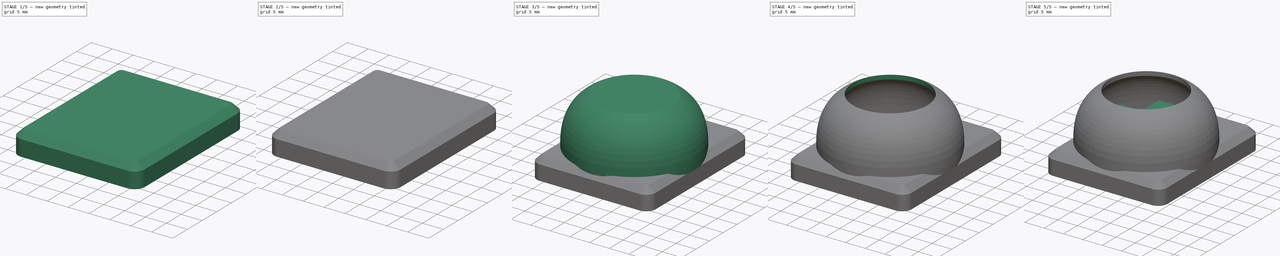
[diagram: build sequence overview — one tinted view per stage of 5, left to right]
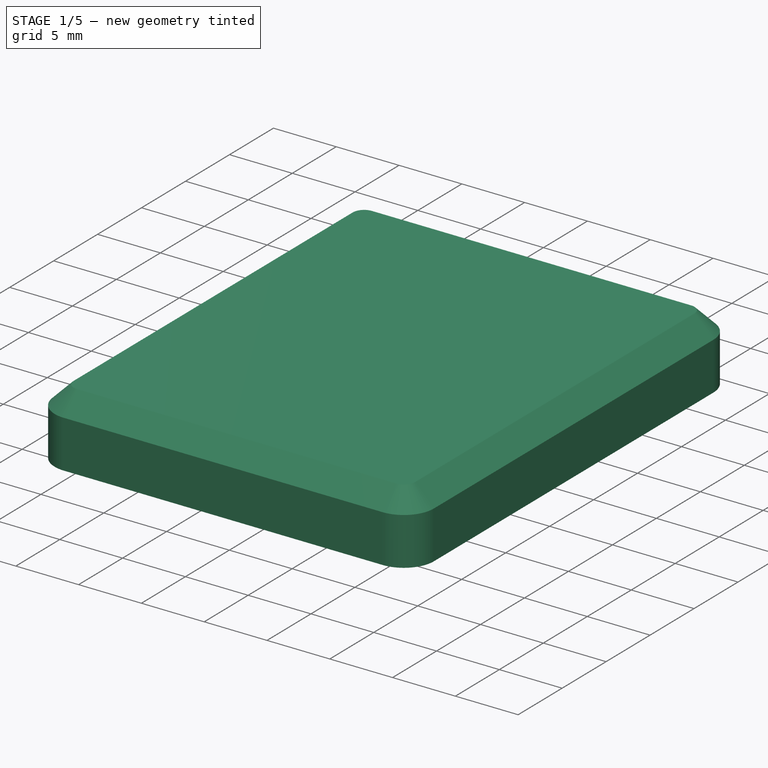
[diagram: stage 1 of 5 — iso view after this stage's code; geometry added in this stage tinted green]
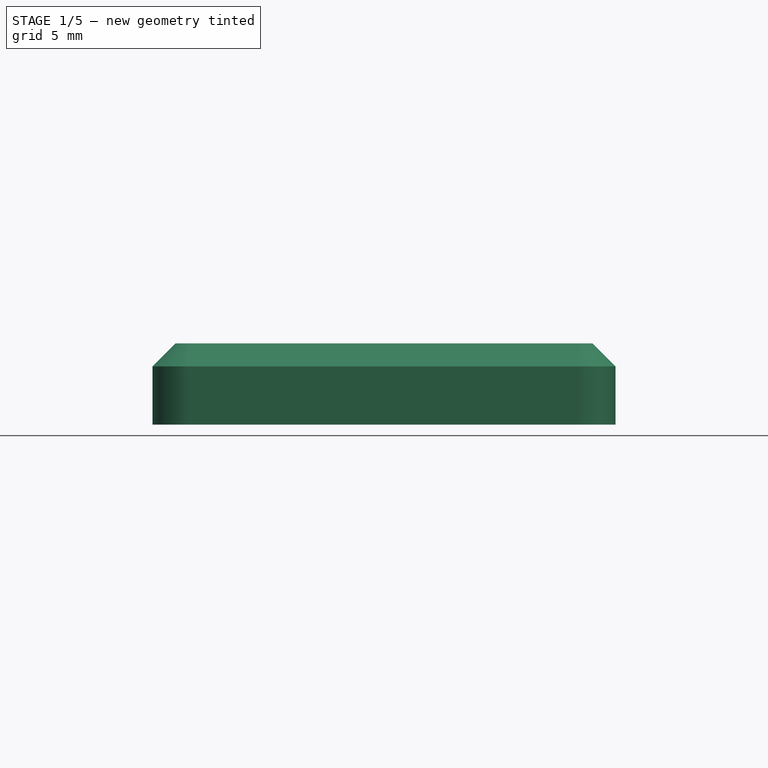
[diagram: stage 1 of 5 — front view after this stage's code; geometry added in this stage tinted green]
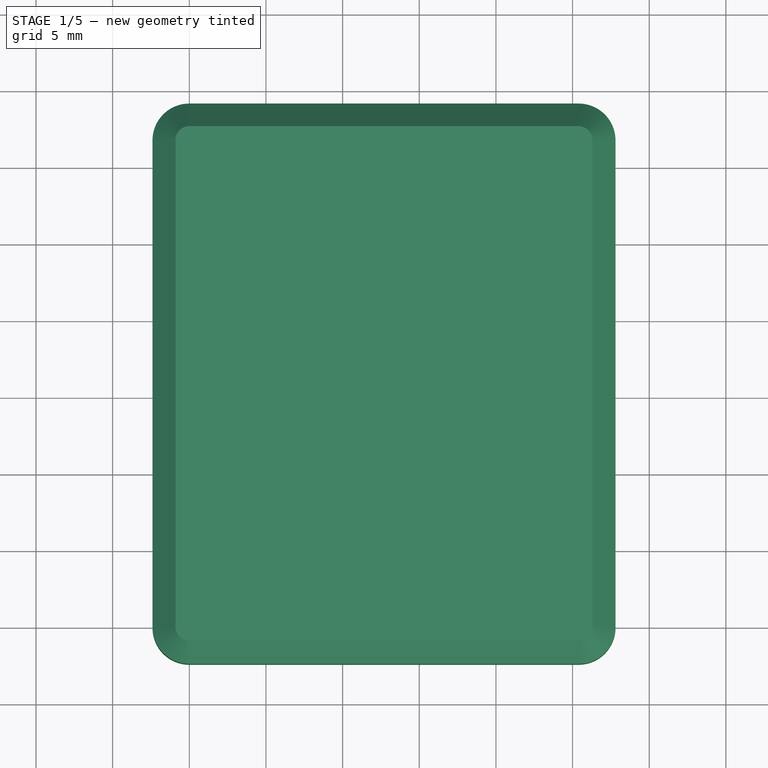
[diagram: stage 1 of 5 — top view after this stage's code; geometry added in this stage tinted green]
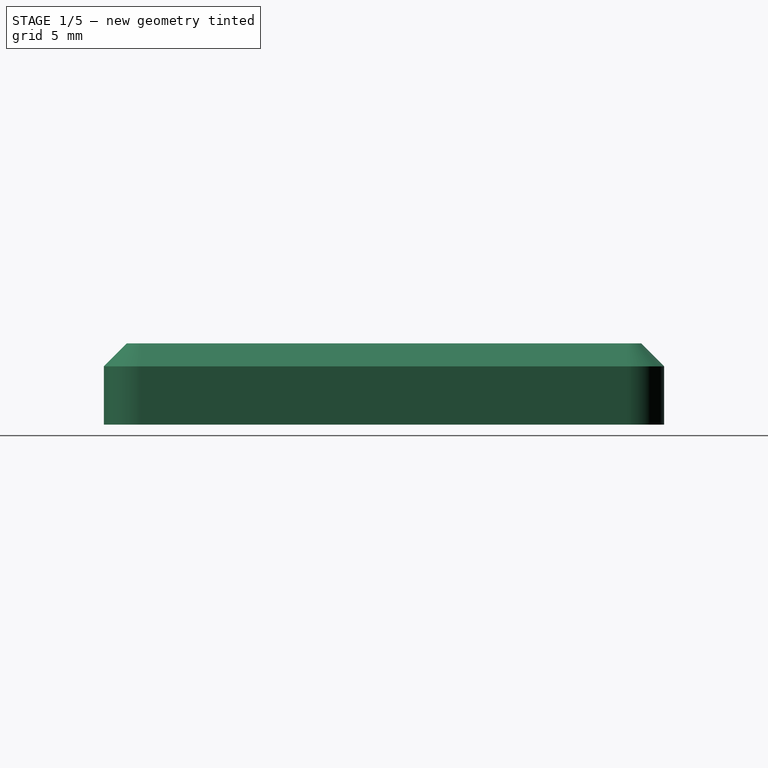
[diagram: stage 1 of 5 — right view after this stage's code; geometry added in this stage tinted green]
FCSTD DOCUMENT  (FreeCAD 1.0RUnknown)
Label: thumbstick-breakout
License: All rights reserved
LicenseURL: https://en.wikipedia.org/wiki/All_rights_reserved
objects: Sketcher::SketchObject×14, App::Part×6, PartDesign::Pad×6, PartDesign::ShapeBinder×5, PartDesign::Pocket×5, PartDesign::Body×4, Part::Feature×3, PartDesign::Thickness×2, PartDesign::CoordinateSystem×1, Part::Ellipsoid×1, PartDesign::Plane×1, PartDesign::Chamfer×1, PartDesign::Revolution×1
note: 88 computed .brp shape members not serialized (recipe doc carries the construction recipe); baked Part::Feature solids carry a one-line shape summary decoded from their .brp

FEATURE [PartDesign::Body] Body002  label="stick"
  AllowCompound = false
  Group = -> [ShapeBinder005,Sketch,Pad003]
  Origin = -> Origin013
  Placement = pos=(0,0,6.5) rot=(0,0,1;0rad)
  Tip = -> Pad003
FEATURE [Part::Feature] Part__Feature001  label="Thumbstick"
  Placement = pos=(12.7,13.8,-2.8) rot=(0,0,1;0rad)
  shape: bbox 24.74 x 24.74 x 17.5 mm, 20 faces (baked)
FEATURE [App::Part] Part  label="thumbstick"
  Group = -> [Body001,Body002,Part__Feature001]
  Origin = -> Origin011
FEATURE [Sketcher::SketchObject] Sketch015  label="2.006"
  ArcFitTolerance = 1e-06
  FullyConstrained = false
  MakeInternals = false
  sketch-geometry (8):
    g0: LineSegment StartX=-2.4 StartY=31.75 StartZ=0 EndX=-2.4 EndY=0 EndZ=0
    g1: ArcOfCircle CenterX=0 CenterY=0 CenterZ=0 NormalX=0 NormalY=0 NormalZ=1 AngleXU=0 Radius=2.4 StartAngle=3.14159 EndAngle=4.71239
    g2: LineSegment StartX=-4e-16 StartY=-2.4 StartZ=0 EndX=25.4 EndY=-2.4 EndZ=0
    g3: ArcOfCircle CenterX=25.4 CenterY=0 CenterZ=0 NormalX=0 NormalY=0 NormalZ=1 AngleXU=1.5708 Radius=2.4 StartAngle=3.14159 EndAngle=4.71239
    g4: LineSegment StartX=27.8 StartY=-7e-16 StartZ=0 EndX=27.8 EndY=31.75 EndZ=0
    g5: ArcOfCircle CenterX=25.4 CenterY=31.75 CenterZ=0 NormalX=0 NormalY=0 NormalZ=1 AngleXU=-3.14159 Radius=2.4 StartAngle=3.14159 EndAngle=4.71239
    g6: LineSegment StartX=25.4 StartY=34.15 StartZ=0 EndX=0 EndY=34.15 EndZ=0
    g7: ArcOfCircle CenterX=0 CenterY=31.75 CenterZ=0 NormalX=0 NormalY=0 NormalZ=1 AngleXU=-1.5708 Radius=2.4 StartAngle=3.14159 EndAngle=4.71239
  constraints (12):
    c: Vertical(g0)
    c: Coincident(g0,g1)
    c: Coincident(g1,g2)
    c: Horizontal(g2)
    c: Coincident(g2,g3)
    c: Coincident(g3,g4)
    c: Vertical(g4)
    c: Coincident(g4,g5)
    c: Coincident(g5,g6)
    c: Horizontal(g6)
    c: Coincident(g6,g7)
    c: Coincident(g7,g0)
FEATURE [PartDesign::Pad] Pad004
  Direction = (0,0,1)
  Length = 5.3
  Length2 = 10
  Profile = -> Sketch015
  ReferenceAxis = -> Sketch015 [N_Axis]
  Refine = true
  Suppressed = false
  Type = 0
FEATURE [PartDesign::Thickness] Thickness
  Base = -> Pad004 [Face9]
  BaseFeature = -> Pad004
  Intersection = false
  Join = 0
  Mode = 0
  Refine = true
  Reversed = true
  SupportTransform = false
  Suppressed = false
  Value = 2
FEATURE [PartDesign::ShapeBinder] ShapeBinder006
  Support = -> [Pocket003]
  TraceSupport = false
FEATURE [Sketcher::SketchObject] Sketch016
  ArcFitTolerance = 1e-06
  AttachmentSupport = -> [Thickness]
  ExternalGeometry = -> [ShapeBinder006]
  FullyConstrained = true
  MakeInternals = false
  MapMode = 5
  Placement = pos=(0,0,0) rot=(1,0,0;3.14159rad)
  sketch-geometry (8):
    g0: Circle CenterX=2.54 CenterY=-2.54 CenterZ=0 NormalX=0 NormalY=0 NormalZ=1 AngleXU=0 Radius=3
    g1: Circle CenterX=22.86 CenterY=-2.54 CenterZ=0 NormalX=0 NormalY=0 NormalZ=1 AngleXU=0 Radius=3
    g2: Circle CenterX=22.86 CenterY=-29.21 CenterZ=0 NormalX=0 NormalY=0 NormalZ=1 AngleXU=0 Radius=3
    g3: Circle CenterX=2.54 CenterY=-29.21 CenterZ=0 NormalX=0 NormalY=0 NormalZ=1 AngleXU=0 Radius=3
    g4: Circle CenterX=2.54 CenterY=-2.54 CenterZ=0 NormalX=0 NormalY=0 NormalZ=1 AngleXU=0 Radius=1.65
    g5: Circle CenterX=22.86 CenterY=-2.54 CenterZ=0 NormalX=0 NormalY=0 NormalZ=1 AngleXU=0 Radius=1.65
    g6: Circle CenterX=22.86 CenterY=-29.21 CenterZ=0 NormalX=0 NormalY=0 NormalZ=1 AngleXU=0 Radius=1.65
    g7: Circle CenterX=2.54 CenterY=-29.21 CenterZ=0 NormalX=0 NormalY=0 NormalZ=1 AngleXU=0 Radius=1.65
  constraints (16):
    c: Diameter(g0) = 6
    c: Coincident(g0,g-3)
    c: Diameter(g1) = 6
    c: Coincident(g1,g-4)
    c: Diameter(g2) = 6
    c: Coincident(g2,g-5)
    c: Diameter(g3) = 6
    c: Coincident(g3,g-6)
    c: Diameter(g4) = 3.3
    c: Coincident(g4,g0)
    c: Diameter(g5) = 3.3
    c: Coincident(g5,g1)
    c: Diameter(g6) = 3.3
    c: Coincident(g6,g2)
    c: Diameter(g7) = 3.3
    c: Coincident(g7,g3)
FEATURE [Part::Ellipsoid] Ellipsoid
  Angle1 = -90
  Angle2 = 90
  Angle3 = 180
  AttacherType = Attacher::AttachEngine3D
  Placement = pos=(12.7,13.8,9.3) rot=(1,0,0;1.5708rad)
  Radius1 = 12.37
  Radius2 = 12.37
  Radius3 = 8
FEATURE [PartDesign::Plane] DatumPlane
  AttachmentOffset = pos=(0,0,12.7) rot=(0,0,1;0rad)
  AttachmentSupport = -> [YZ_Plane014]
  Length = 70.0266
  MapMode = 5
  Placement = pos=(12.7,0,0) rot=(0.57735,0.57735,0.57735;2.0944rad)
  ResizeMode = 0
  Width = 60.8766
FEATURE [Sketcher::SketchObject] Sketch017
  ArcFitTolerance = 1e-06
  AttachmentSupport = -> [DatumPlane]
  FullyConstrained = false
  MakeInternals = false
  MapMode = 5
  Placement = pos=(12.7,0,0) rot=(0.57735,0.57735,0.57735;2.0944rad)
  sketch-geometry (18):
    g0: Circle [constr] CenterX=29.1118 CenterY=3.8 CenterZ=0 NormalX=0 NormalY=0 NormalZ=1 AngleXU=0 Radius=1
    g1: Circle [constr] CenterX=30.0485 CenterY=13.7535 CenterZ=0 NormalX=0 NormalY=0 NormalZ=1 AngleXU=0 Radius=1
    g2: Circle [constr] CenterX=23.3909 CenterY=17.1877 CenterZ=0 NormalX=0 NormalY=0 NormalZ=1 AngleXU=0 Radius=1
    g3: BSplineCurve PolesCount=3 KnotsCount=2 Degree=2 IsPeriodic=0
    g4: GeomPoint [constr] X=29.1118 Y=3.8 Z=0
    g5: GeomPoint [constr] X=23.3909 Y=17.1877 Z=0
    g6: LineSegment StartX=23.3909 StartY=17.1877 StartZ=0 EndX=13.7824 EndY=17.1877 EndZ=0
    g7: Circle [constr] CenterX=28.1118 CenterY=3.8 CenterZ=0 NormalX=0 NormalY=0 NormalZ=1 AngleXU=0 Radius=1
    g8: Circle [constr] CenterX=28.4002 CenterY=12.6207 CenterZ=0 NormalX=0 NormalY=0 NormalZ=1 AngleXU=0 Radius=1
    g9: Circle [constr] CenterX=23.1917 CenterY=16.2077 CenterZ=0 NormalX=0 NormalY=0 NormalZ=1 AngleXU=0 Radius=1
    g10: BSplineCurve PolesCount=3 KnotsCount=2 Degree=2 IsPeriodic=0
    g11: GeomPoint [constr] X=28.1118 Y=3.8 Z=0
    g12: GeomPoint [constr] X=23.1917 Y=16.2077 Z=0
    g13: LineSegment StartX=28.1118 StartY=3.8 StartZ=0 EndX=29.1118 EndY=3.8 EndZ=0
    g14: LineSegment StartX=13.7824 StartY=17.1877 StartZ=0 EndX=13.7824 EndY=16.2077 EndZ=0
    g15: LineSegment StartX=13.7824 StartY=16.2077 StartZ=0 EndX=23.1917 EndY=16.2077 EndZ=0
    g16: LineSegment [constr] StartX=1.40969 StartY=9.23031 StartZ=0 EndX=26.155 EndY=9.23031 EndZ=0
    g17: LineSegment [constr] StartX=13.7824 StartY=9.23031 StartZ=0 EndX=13.7824 EndY=17.9973 EndZ=0
  constraints (33):
    c: Weight(g0) = 1
    c: Equal(g0,g1)
    c: Equal(g0,g2)
    c: InternalAlignment(g0,g3)
    c: InternalAlignment(g1,g3)
    c: InternalAlignment(g2,g3)
    c: InternalAlignment(g4,g3)
    c: InternalAlignment(g5,g3)
    c: Coincident(g6,g3)
    c: Horizontal(g6)
    c: Weight(g7) = 1
    c: Equal(g7,g8)
    c: Equal(g7,g9)
    c: InternalAlignment(g7,g10)
    c: InternalAlignment(g8,g10)
    c: InternalAlignment(g9,g10)
    c: InternalAlignment(g11,g10)
    c: InternalAlignment(g12,g10)
    c: Coincident(g13,g10)
    c: Coincident(g13,g3)
    c: Horizontal(g13)
    c: DistanceX(g13,g13) = 1
    c: Distance(g3,g10) = 1
    c: Distance(g1,g8) = 2
    c: Coincident(g6,g14)
    c: Vertical(g14)
    c: Coincident(g15,g10)
    c: Horizontal(g15)
    c: Horizontal(g16)
    c: Symmetric(g16,g16,g17)
    c: Vertical(g17)
    c: PointOnObject(g6,g17)
    c: Distance(g10,g-3) = 1.5
FEATURE [PartDesign::Chamfer] Chamfer
  Angle = 45
  Base = -> Thickness [Edge4]
  BaseFeature = -> Thickness
  ChamferType = 0
  FlipDirection = false
  Refine = true
  Size = 1.5
  Size2 = 1
  SupportTransform = false
  Suppressed = false
  UseAllEdges = false
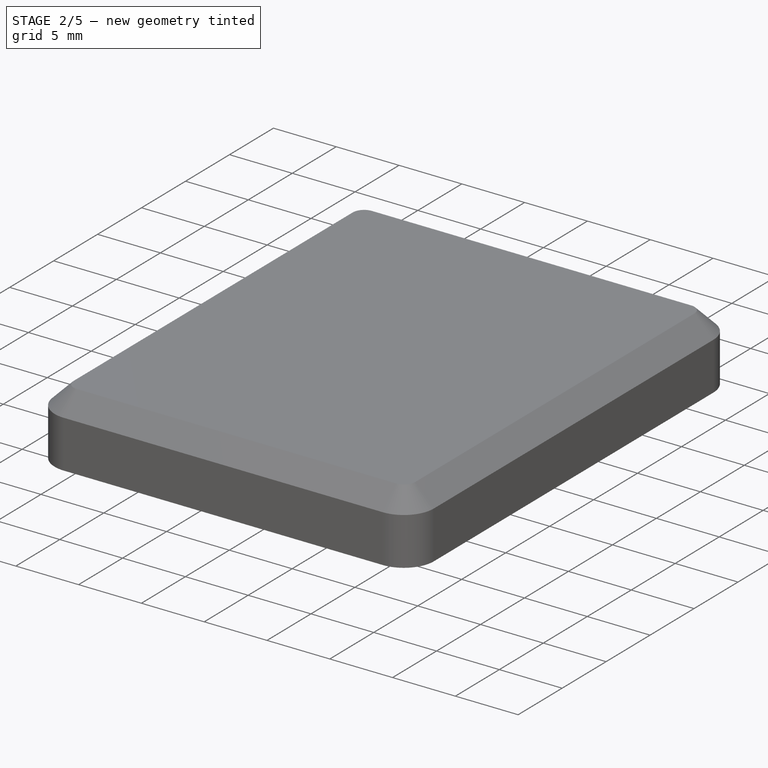
[diagram: stage 2 of 5 — iso view after this stage's code; geometry added in this stage tinted green]
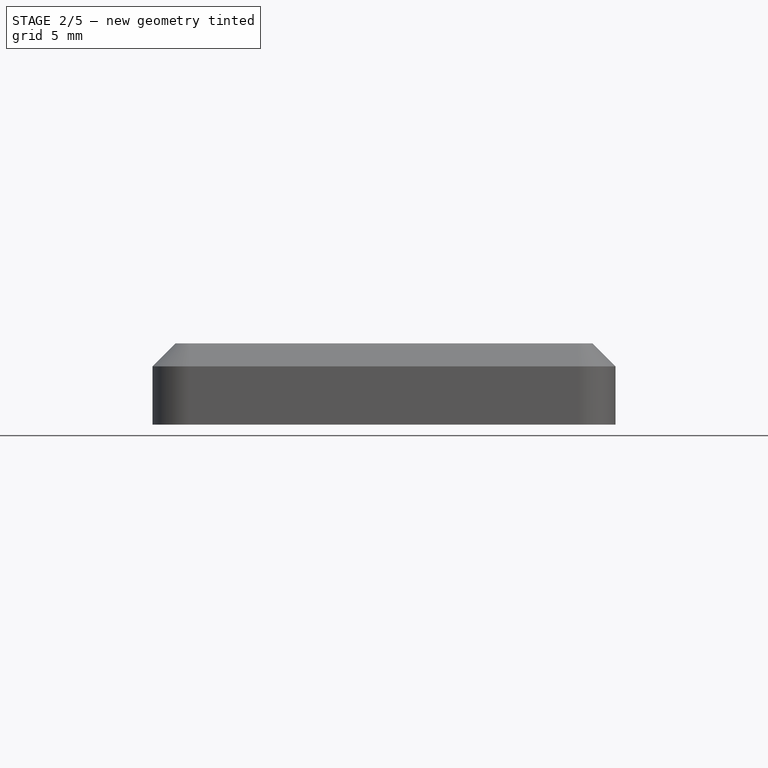
[diagram: stage 2 of 5 — front view after this stage's code; geometry added in this stage tinted green]
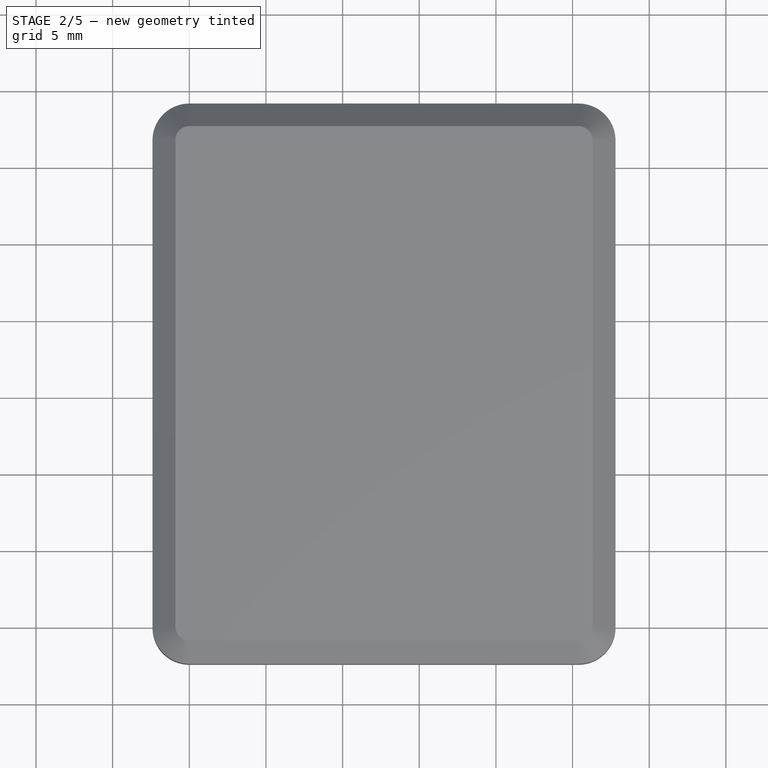
[diagram: stage 2 of 5 — top view after this stage's code; geometry added in this stage tinted green]
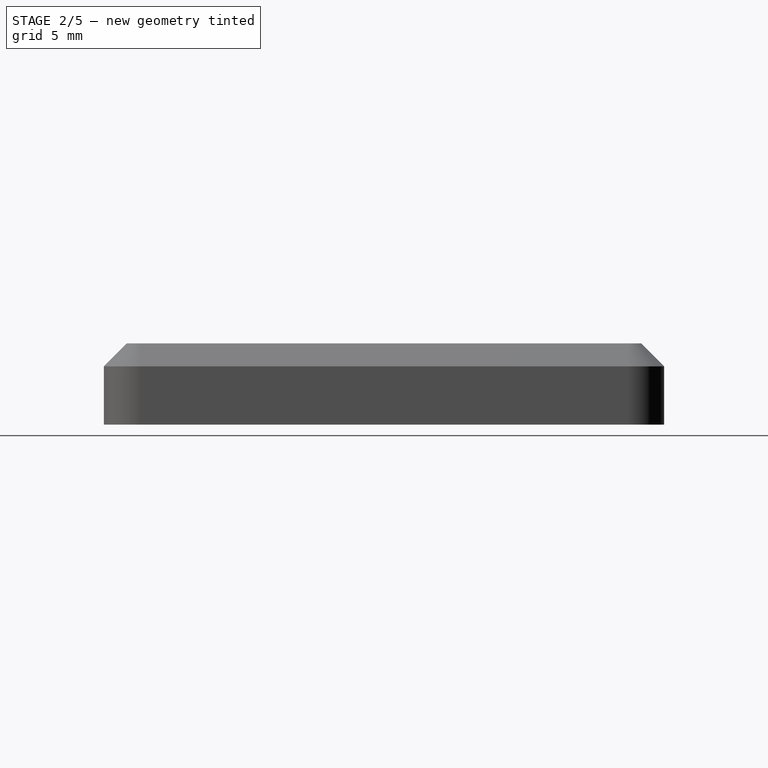
[diagram: stage 2 of 5 — right view after this stage's code; geometry added in this stage tinted green]
FEATURE [PartDesign::CoordinateSystem] Local_CS_bbd4
  AttacherType = Attacher::AttachEngine3D
  MapMode = 2
FEATURE [Part::Feature] Pcb_bbd4
  Placement = pos=(-137.3,117.78,0) rot=(0,0,1;0rad)
  shape: bbox 25.4 x 31.75 x 1.6 mm, 24 faces (baked)
FEATURE [Sketcher::SketchObject] PCB_Sketch_bbd4
  ArcFitTolerance = 1e-06
  FullyConstrained = false
  MakeInternals = false
  sketch-geometry (4):
    g0: LineSegment StartX=0 StartY=31.75 StartZ=0 EndX=0 EndY=0 EndZ=0
    g1: LineSegment StartX=25.4 StartY=31.75 StartZ=0 EndX=0 EndY=31.75 EndZ=0
    g2: LineSegment StartX=0 StartY=0 StartZ=0 EndX=25.4 EndY=0 EndZ=0
    g3: LineSegment StartX=25.4 StartY=0 StartZ=0 EndX=25.4 EndY=31.75 EndZ=0
  constraints (4):
    c: Coincident(g0,g2)
    c: Coincident(g0,g1)
    c: Coincident(g2,g3)
    c: Coincident(g1,g3)
FEATURE [App::Part] Board_Geoms_bbd4
  Group = -> [Pcb_bbd4,PCB_Sketch_bbd4]
  Origin = -> Origin
FEATURE [Part::Feature] Shape  label="J1_SOLID_4955641dfa02"
  Placement = pos=(12.66,29.4,0) rot=(0,0.707107,0.707107;3.14159rad)
  shape: bbox 4.001 x 3.601 x 0.9007 mm, 670 faces (baked)
FEATURE [App::Part] Top_bbd4
  Group = -> [Shape]
  Origin = -> Origin003
FEATURE [App::Part] Step_Models_bbd4
  Group = -> [Top_bbd4]
  Origin = -> Origin002
FEATURE [App::Part] Board_bbd4  label="thumbstick-breakout"
  Group = -> [Local_CS_bbd4,Board_Geoms_bbd4,Step_Models_bbd4]
  Origin = -> Origin001
FEATURE [Sketcher::SketchObject] Sketch009  label="2.005"
  ArcFitTolerance = 1e-06
  FullyConstrained = false
  MakeInternals = false
  sketch-geometry (8):
    g0: LineSegment StartX=-2.4 StartY=31.75 StartZ=0 EndX=-2.4 EndY=0 EndZ=0
    g1: ArcOfCircle CenterX=4.026e-13 CenterY=0 CenterZ=0 NormalX=0 NormalY=0 NormalZ=1 AngleXU=0 Radius=2.4 StartAngle=3.14159 EndAngle=4.71239
    g2: LineSegment StartX=4.70767e-08 StartY=-2.4 StartZ=0 EndX=25.4 EndY=-2.4 EndZ=0
    g3: ArcOfCircle CenterX=25.4 CenterY=0 CenterZ=0 NormalX=0 NormalY=0 NormalZ=1 AngleXU=0 Radius=2.4 StartAngle=4.71239 EndAngle=6.28318
    g4: LineSegment StartX=27.8 StartY=-7.37231e-07 StartZ=0 EndX=27.8 EndY=31.75 EndZ=0
    g5: ArcOfCircle CenterX=25.4 CenterY=31.75 CenterZ=0 NormalX=0 NormalY=0 NormalZ=1 AngleXU=0 Radius=2.4 StartAngle=0 EndAngle=1.5708
    g6: LineSegment StartX=25.4 StartY=34.15 StartZ=0 EndX=7.84308e-07 EndY=34.15 EndZ=0
    g7: ArcOfCircle CenterX=0 CenterY=31.75 CenterZ=0 NormalX=0 NormalY=0 NormalZ=1 AngleXU=0 Radius=2.4 StartAngle=1.5708 EndAngle=3.14159
  constraints (12):
    c: Vertical(g0)
    c: Coincident(g0,g1)
    c: Coincident(g1,g2)
    c: Horizontal(g2)
    c: Coincident(g2,g3)
    c: Coincident(g3,g4)
    c: Vertical(g4)
    c: Coincident(g4,g5)
    c: Coincident(g5,g6)
    c: Horizontal(g6)
    c: Coincident(g6,g7)
    c: Coincident(g7,g0)
FEATURE [PartDesign::Pad] Pad
  Direction = (0,0,1)
  Length = 3.2
  Length2 = 10
  Profile = -> Sketch009
  ReferenceAxis = -> Sketch009 [N_Axis]
  Refine = true
  Suppressed = false
  Type = 0
FEATURE [PartDesign::Thickness] Thickness001
  Base = -> Pad [Face10]
  BaseFeature = -> Pad
  Intersection = false
  Join = 0
  Mode = 0
  Refine = true
  Reversed = true
  SupportTransform = false
  Suppressed = false
  Value = 2
FEATURE [PartDesign::ShapeBinder] ShapeBinder
  Support = -> [Pcb_bbd4]
  TraceSupport = false
FEATURE [Sketcher::SketchObject] Sketch010
  ArcFitTolerance = 1e-06
  AttachmentSupport = -> [Thickness001]
  ExternalGeometry = -> [ShapeBinder]
  FullyConstrained = true
  MakeInternals = false
  MapMode = 5
  Placement = pos=(0,0,2) rot=(0,0,1;0rad)
  sketch-geometry (4):
    g0: Circle CenterX=2.54 CenterY=29.21 CenterZ=0 NormalX=0 NormalY=0 NormalZ=1 AngleXU=0 Radius=1.25
    g1: Circle CenterX=22.86 CenterY=29.21 CenterZ=0 NormalX=0 NormalY=0 NormalZ=1 AngleXU=0 Radius=1.25
    g2: Circle CenterX=22.86 CenterY=2.54 CenterZ=0 NormalX=0 NormalY=0 NormalZ=1 AngleXU=0 Radius=1.25
    g3: Circle CenterX=2.54 CenterY=2.54 CenterZ=0 NormalX=0 NormalY=0 NormalZ=1 AngleXU=0 Radius=1.25
  constraints (8):
    c: Diameter(g0) = 2.5
    c: Coincident(g0,g-3)
    c: Diameter(g1) = 2.5
    c: Coincident(g1,g-4)
    c: Diameter(g2) = 2.5
    c: Coincident(g2,g-5)
    c: Diameter(g3) = 2.5
    c: Coincident(g3,g-6)
FEATURE [PartDesign::Pocket] Pocket002
  BaseFeature = -> Thickness001
  Direction = (0,0,-1)
  Length = 5
  Length2 = 5
  Profile = -> Sketch010
  ReferenceAxis = -> Sketch010 [N_Axis]
  Refine = true
  Suppressed = false
  Type = 1
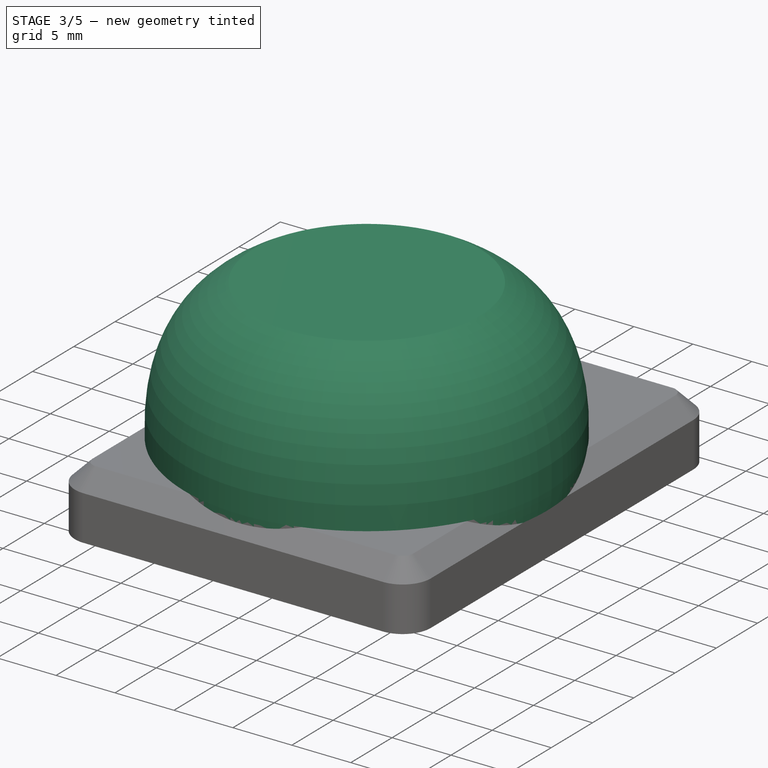
[diagram: stage 3 of 5 — iso view after this stage's code; geometry added in this stage tinted green]
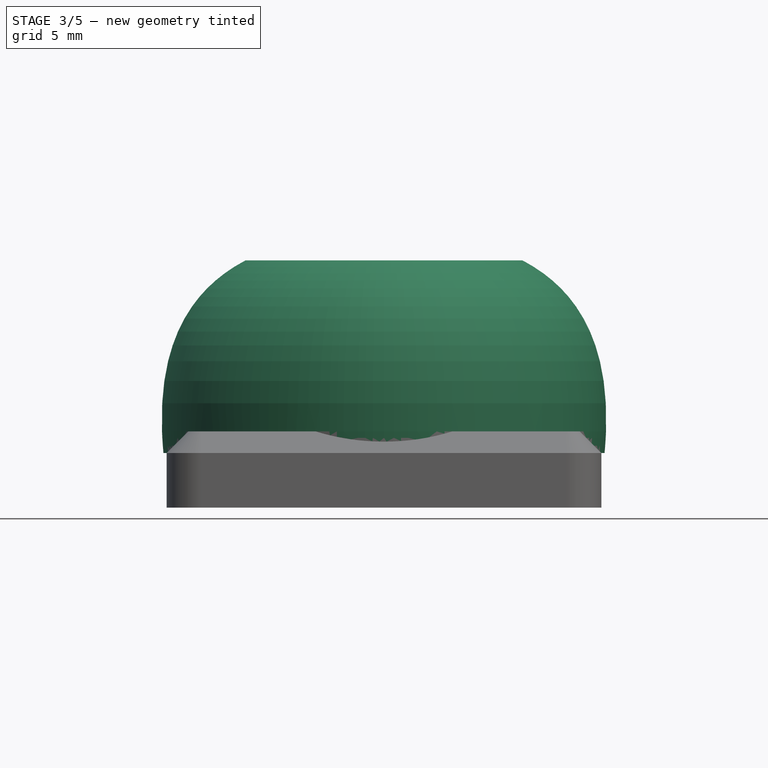
[diagram: stage 3 of 5 — front view after this stage's code; geometry added in this stage tinted green]
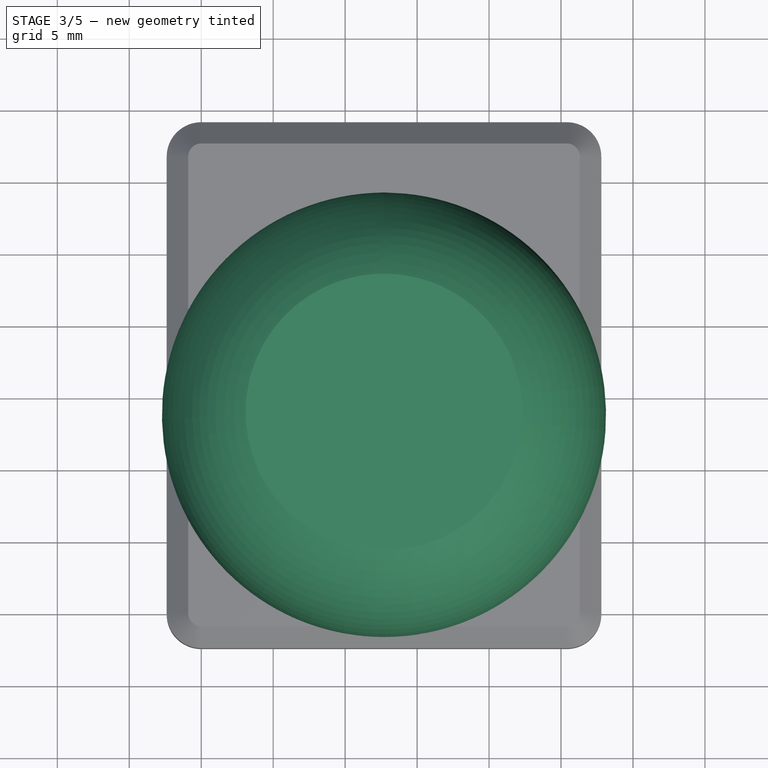
[diagram: stage 3 of 5 — top view after this stage's code; geometry added in this stage tinted green]
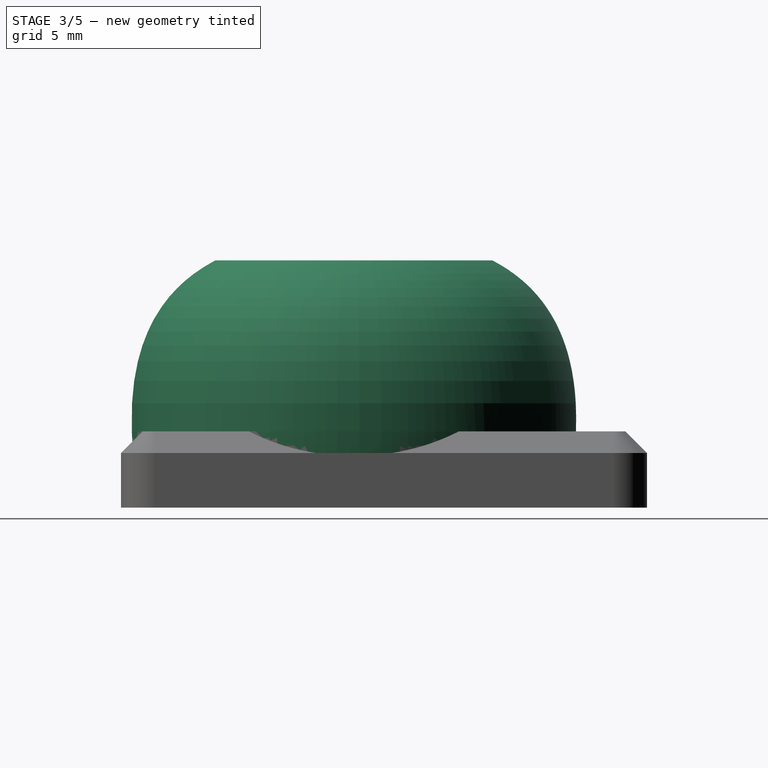
[diagram: stage 3 of 5 — right view after this stage's code; geometry added in this stage tinted green]
FEATURE [PartDesign::ShapeBinder] ShapeBinder003
  Support = -> [Pcb_bbd4]
  TraceSupport = false
FEATURE [Sketcher::SketchObject] Sketch011
  ArcFitTolerance = 1e-06
  AttachmentSupport = -> [Pocket002]
  ExternalGeometry = -> [ShapeBinder003]
  FullyConstrained = true
  MakeInternals = false
  MapMode = 5
  Placement = pos=(0,0,2) rot=(0,0,1;0rad)
  sketch-geometry (14):
    g0: Circle CenterX=9.45 CenterY=24.043 CenterZ=0 NormalX=0 NormalY=0 NormalZ=1 AngleXU=0 Radius=1.5
    g1: Circle CenterX=15.95 CenterY=24.043 CenterZ=0 NormalX=0 NormalY=0 NormalZ=1 AngleXU=0 Radius=1.5
    g2: Circle CenterX=15.95 CenterY=19.543 CenterZ=0 NormalX=0 NormalY=0 NormalZ=1 AngleXU=0 Radius=1.5
    g3: Circle CenterX=19.025 CenterY=18.793 CenterZ=0 NormalX=0 NormalY=0 NormalZ=1 AngleXU=0 Radius=1.5
    g4: Circle CenterX=19.025 CenterY=8.793 CenterZ=0 NormalX=0 NormalY=0 NormalZ=1 AngleXU=0 Radius=1.5
    g5: Circle CenterX=9.45 CenterY=19.543 CenterZ=0 NormalX=0 NormalY=0 NormalZ=1 AngleXU=0 Radius=1.5
    g6: Circle CenterX=6.375 CenterY=18.793 CenterZ=0 NormalX=0 NormalY=0 NormalZ=1 AngleXU=0 Radius=1.5
    g7: Circle CenterX=6.375 CenterY=8.793 CenterZ=0 NormalX=0 NormalY=0 NormalZ=1 AngleXU=0 Radius=1.5
    g8: Circle CenterX=3.97 CenterY=16.293 CenterZ=0 NormalX=0 NormalY=0 NormalZ=1 AngleXU=0 Radius=1.2
    g9: Circle CenterX=3.97 CenterY=13.793 CenterZ=0 NormalX=0 NormalY=0 NormalZ=1 AngleXU=0 Radius=1.2
    g10: Circle CenterX=3.97 CenterY=11.293 CenterZ=0 NormalX=0 NormalY=0 NormalZ=1 AngleXU=0 Radius=1.2
    g11: Circle CenterX=10.2 CenterY=5.063 CenterZ=0 NormalX=0 NormalY=0 NormalZ=1 AngleXU=0 Radius=1.2
    g12: Circle CenterX=12.7 CenterY=5.063 CenterZ=0 NormalX=0 NormalY=0 NormalZ=1 AngleXU=0 Radius=1.2
    g13: Circle CenterX=15.2 CenterY=5.063 CenterZ=0 NormalX=0 NormalY=0 NormalZ=1 AngleXU=0 Radius=1.2
  constraints (28):
    c: Diameter(g0) = 3
    c: Coincident(g0,g-3)
    c: Diameter(g1) = 3
    c: Coincident(g1,g-5)
    c: Diameter(g2) = 3
    c: Coincident(g2,g-6)
    c: Diameter(g3) = 3
    c: Coincident(g3,g-12)
    c: Diameter(g4) = 3
    c: Coincident(g4,g-13)
    c: Diameter(g5) = 3
    c: Coincident(g5,g-4)
    c: Diameter(g6) = 3
    c: Coincident(g6,g-7)
    c: Diameter(g7) = 3
    c: Coincident(g7,g-11)
    c: Diameter(g8) = 2.4
    c: Coincident(g8,g-8)
    c: Diameter(g9) = 2.4
    c: Coincident(g9,g-9)
    c: Diameter(g10) = 2.4
    c: Coincident(g10,g-10)
    c: Diameter(g11) = 2.4
    c: Coincident(g11,g-16)
    c: Diameter(g12) = 2.4
    c: Coincident(g12,g-15)
    c: Diameter(g13) = 2.4
    c: Coincident(g13,g-14)
FEATURE [PartDesign::Pocket] Pocket003
  BaseFeature = -> Pocket002
  Direction = (0,0,-1)
  Length = 1
  Length2 = 5
  Profile = -> Sketch011
  ReferenceAxis = -> Sketch011 [N_Axis]
  Refine = true
  Suppressed = false
  Type = 0
FEATURE [PartDesign::Pad] Pad005
  BaseFeature = -> Chamfer
  Direction = (0,0,-1)
  Length = 3.3
  Length2 = 10
  Profile = -> Sketch016
  ReferenceAxis = -> Sketch016 [N_Axis]
  Refine = true
  Reversed = true
  Suppressed = false
  Type = 0
FEATURE [PartDesign::Revolution] Revolution
  Angle = 360
  Angle2 = 60
  Axis = (0,0,-1)
  Base = (12.7,13.7824,17.1877)
  BaseFeature = -> Pad005
  Profile = -> Sketch017
  ReferenceAxis = -> Sketch017 [Edge4]
  Refine = true
  Reversed = true
  Suppressed = false
  Type = 0
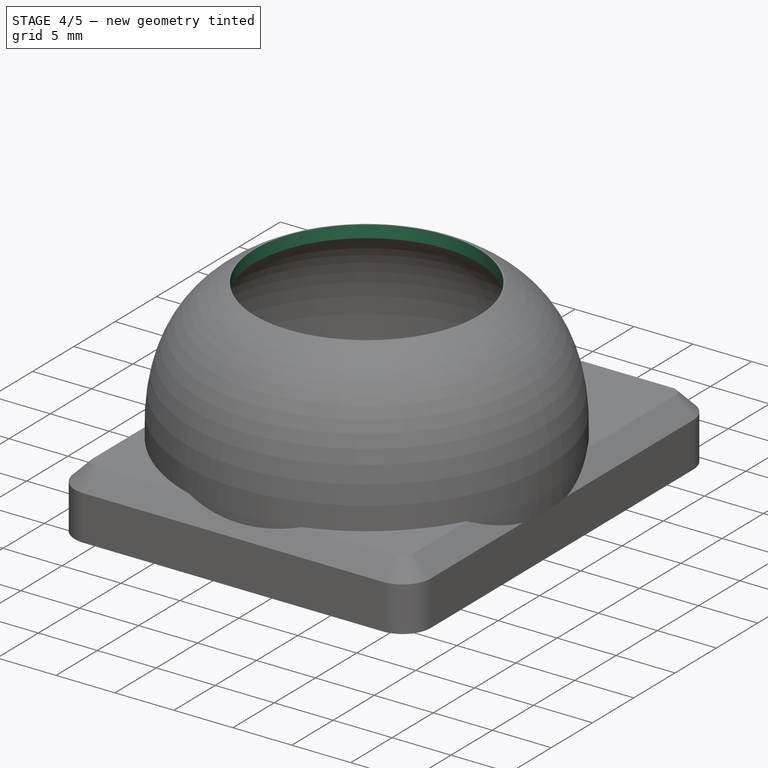
[diagram: stage 4 of 5 — iso view after this stage's code; geometry added in this stage tinted green]
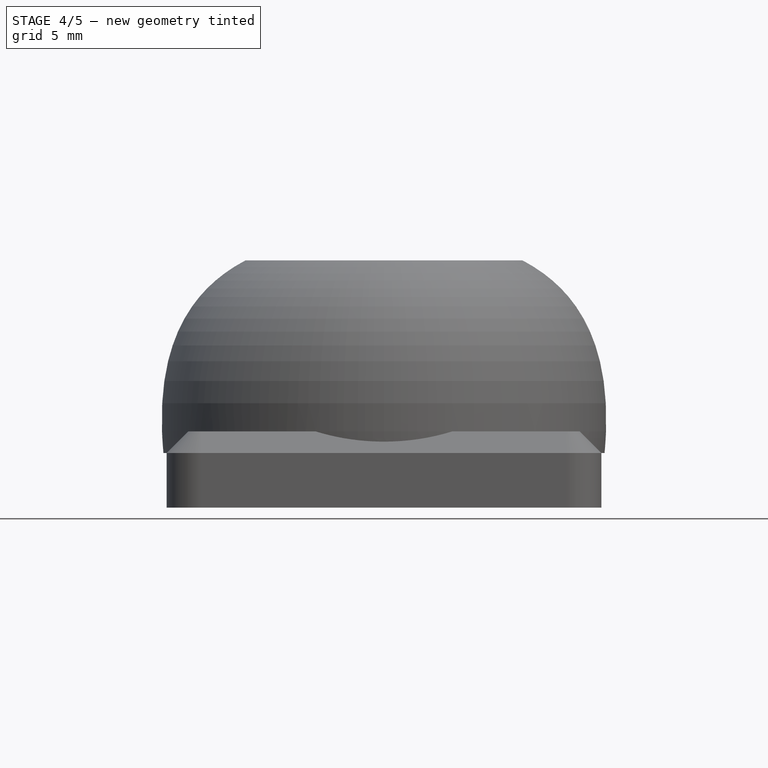
[diagram: stage 4 of 5 — front view after this stage's code; geometry added in this stage tinted green]
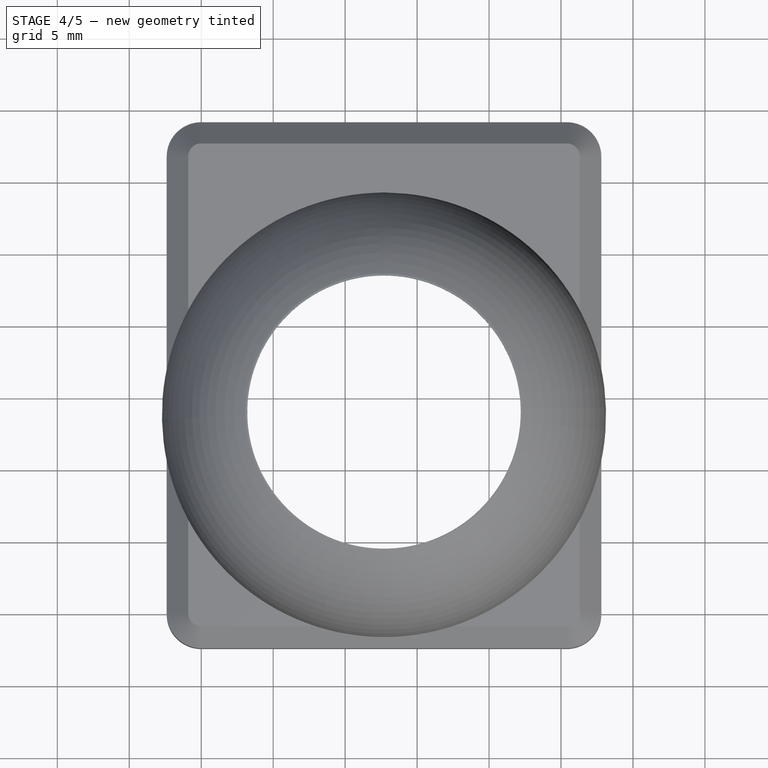
[diagram: stage 4 of 5 — top view after this stage's code; geometry added in this stage tinted green]
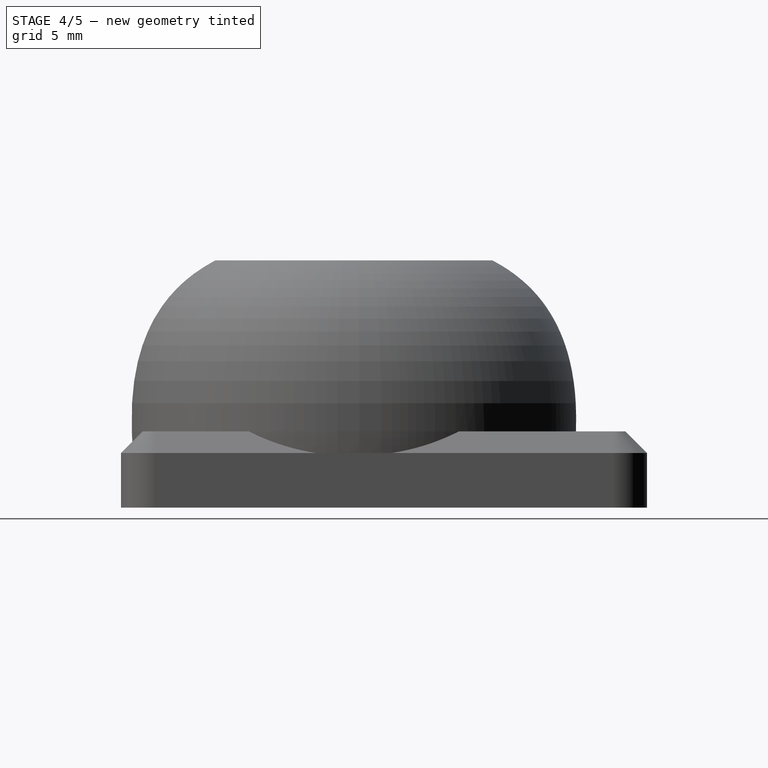
[diagram: stage 4 of 5 — right view after this stage's code; geometry added in this stage tinted green]
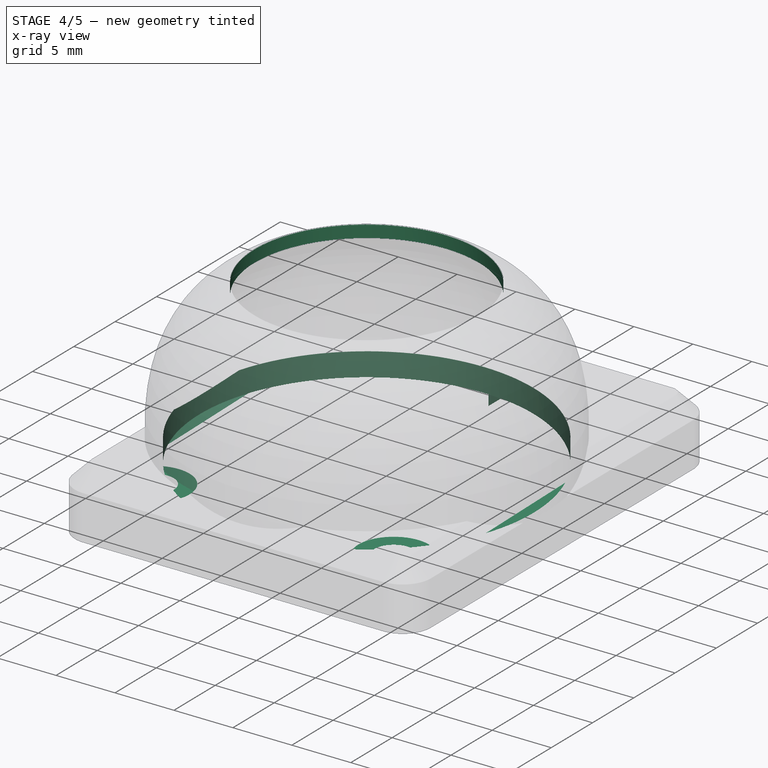
[diagram: stage 4 of 5 — x-ray composite at the iso view; earlier geometry ghosted, this stage's added geometry solid]
FEATURE [Sketcher::SketchObject] Sketch018
  ArcFitTolerance = 1e-06
  AttachmentSupport = -> [Revolution]
  ExternalGeometry = -> [Revolution]
  FullyConstrained = true
  MakeInternals = false
  MapMode = 5
  Placement = pos=(0,0,17.1877) rot=(0,0,1;0rad)
  sketch-geometry (1):
    g0: Circle CenterX=12.7 CenterY=13.7824 CenterZ=0 NormalX=0 NormalY=0 NormalZ=1 AngleXU=0 Radius=9.5
  constraints (2):
    c: Coincident(g0,g-3)
    c: Diameter(g0) = 19
FEATURE [PartDesign::Pocket] Pocket
  BaseFeature = -> Revolution
  Direction = (0,0,-1)
  Length = 14
  Length2 = 5
  Profile = -> Sketch018
  ReferenceAxis = -> Sketch018 [N_Axis]
  Refine = true
  Suppressed = false
  Type = 0
FEATURE [Sketcher::SketchObject] Sketch019
  ArcFitTolerance = 1e-06
  AttachmentSupport = -> [Pocket]
  FullyConstrained = true
  MakeInternals = false
  MapMode = 5
  Placement = pos=(0,0,5.3) rot=(0,0,1;0rad)
  sketch-geometry (1):
    g0: Circle CenterX=12.7 CenterY=13.7824 CenterZ=0 NormalX=0 NormalY=0 NormalZ=1 AngleXU=0 Radius=14.157
  constraints (2):
    c: Coincident(g0,g-3)
    c: Equal(g0,g-3)
FEATURE [PartDesign::Pocket] Pocket004
  BaseFeature = -> Pocket
  Direction = (0,0,-1)
  Length = 2
  Length2 = 5
  Profile = -> Sketch019
  ReferenceAxis = -> Sketch019 [N_Axis]
  Refine = true
  Suppressed = false
  Type = 0
FEATURE [Sketcher::SketchObject] Sketch020
  ArcFitTolerance = 1e-06
  AttachmentSupport = -> [Pocket004]
  ExternalGeometry = -> [Pocket004]
  FullyConstrained = false
  MakeInternals = false
  MapMode = 5
  Placement = pos=(0,34.15,0) rot=(0,0.707107,0.707107;3.14159rad)
  sketch-geometry (4):
    g0: LineSegment StartX=-15.1629 StartY=0 StartZ=0 EndX=-10.1629 EndY=0 EndZ=0
    g1: LineSegment StartX=-10.1629 StartY=0 StartZ=0 EndX=-10.1629 EndY=1.3 EndZ=0
    g2: LineSegment StartX=-10.1629 StartY=1.3 StartZ=0 EndX=-15.1629 EndY=1.3 EndZ=0
    g3: LineSegment StartX=-15.1629 StartY=1.3 StartZ=0 EndX=-15.1629 EndY=0 EndZ=0
  constraints (11):
    c: Coincident(g0,g1)
    c: Coincident(g1,g2)
    c: Coincident(g2,g3)
    c: Coincident(g3,g0)
    c: Horizontal(g0)
    c: Horizontal(g2)
    c: Vertical(g1)
    c: Vertical(g3)
    c: PointOnObject(g0,g-3)
    c: DistanceX(g2,g2) = 5
    c: DistanceY(g1,g1) = 1.3
FEATURE [PartDesign::Pocket] Pocket005
  BaseFeature = -> Pocket004
  Direction = (0,-1,2e-16)
  Length = 2
  Length2 = 5
  Profile = -> Sketch020
  ReferenceAxis = -> Sketch020 [N_Axis]
  Refine = true
  Suppressed = false
  Type = 0
FEATURE [PartDesign::Body] Body003  label="top"
  AllowCompound = false
  Group = -> [Sketch015,Pad004,Thickness,Chamfer,ShapeBinder006,Sketch016,Pad005,DatumPlane,Sketch017,Revolution,Sketch018,Pocket,Sketch019,Pocket004,Sketch020,Pocket005]
  Origin = -> Origin014
  Tip = -> Pocket005
FEATURE [App::Part] Part001  label="case"
  Group = -> [Body,Body003,Ellipsoid]
  Origin = -> Origin009
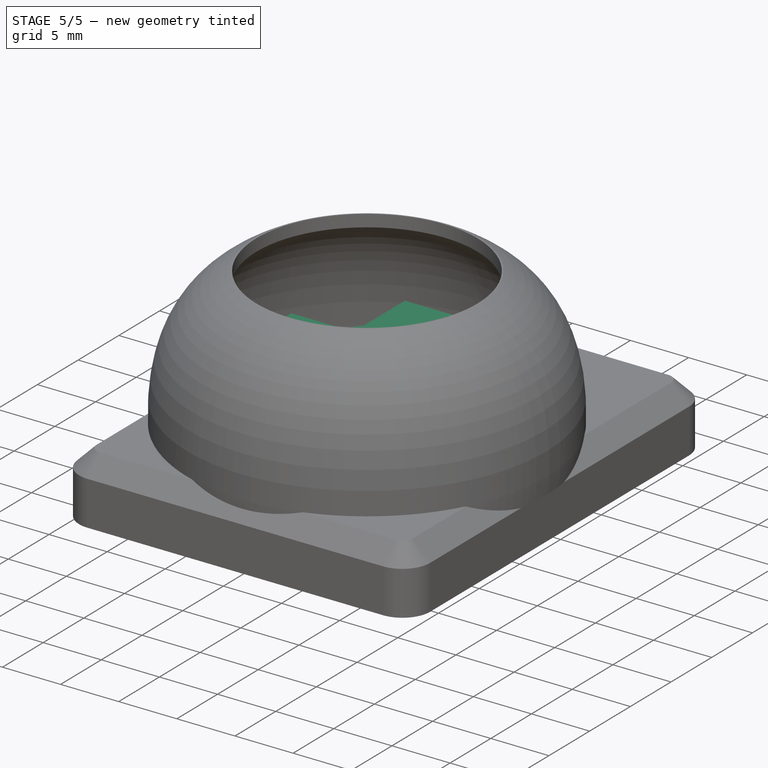
[diagram: stage 5 of 5 — iso view after this stage's code; geometry added in this stage tinted green]
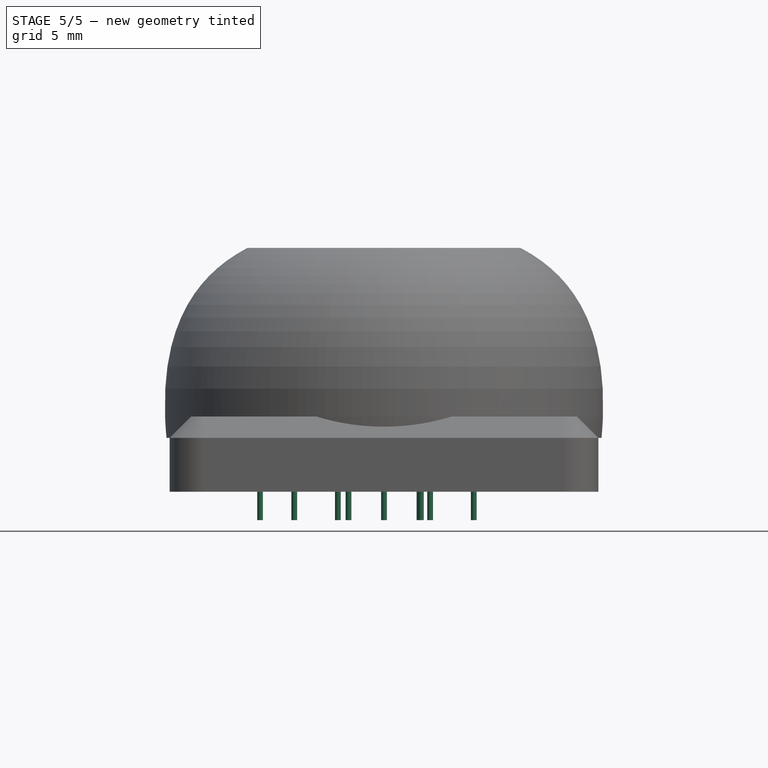
[diagram: stage 5 of 5 — front view after this stage's code; geometry added in this stage tinted green]
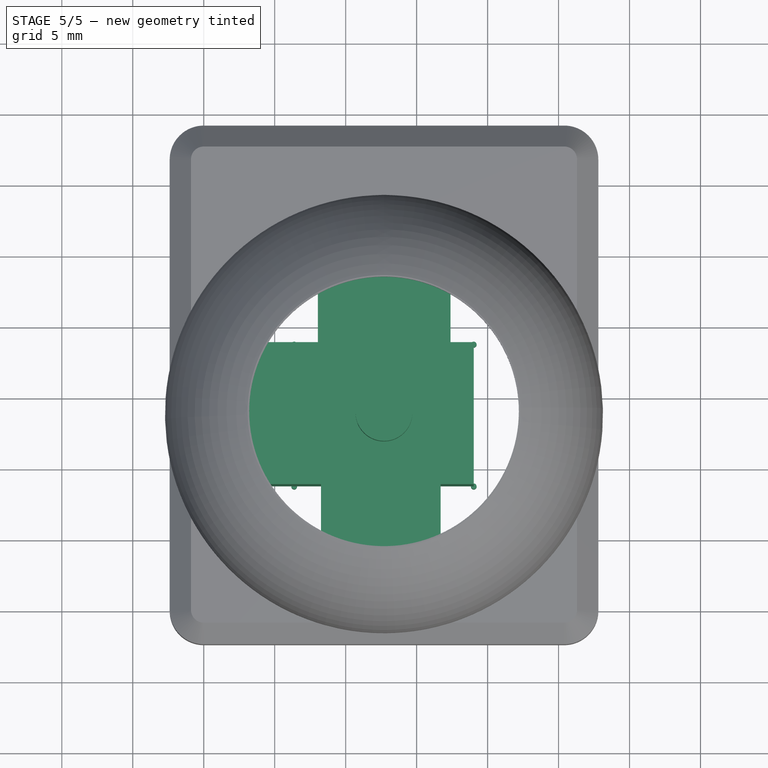
[diagram: stage 5 of 5 — top view after this stage's code; geometry added in this stage tinted green]
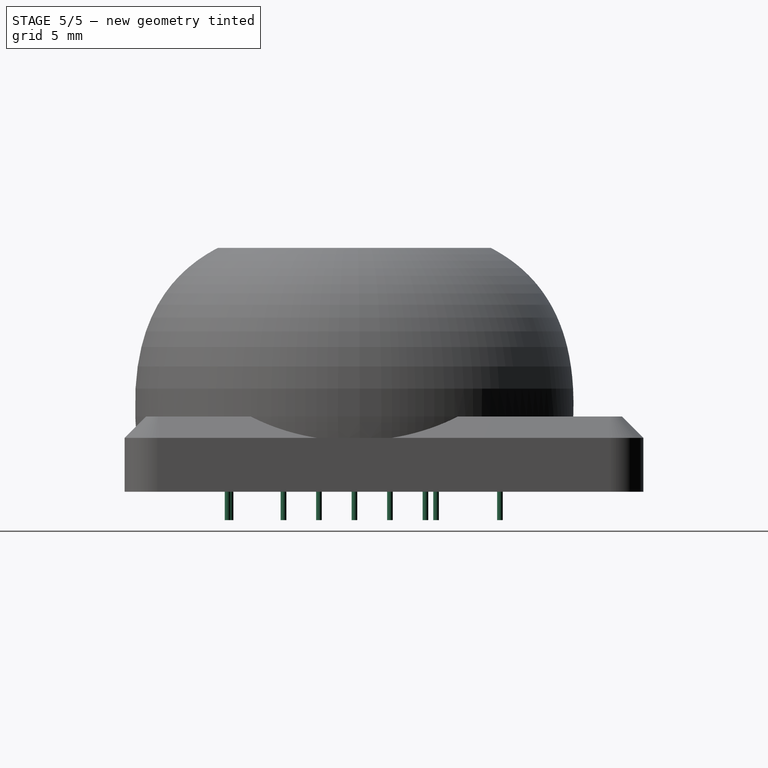
[diagram: stage 5 of 5 — right view after this stage's code; geometry added in this stage tinted green]
FEATURE [PartDesign::Body] Body  label="base"
  AllowCompound = false
  Group = -> [Sketch009,Pad,Thickness001,ShapeBinder,Sketch010,Pocket002,ShapeBinder003,Sketch011,Pocket003]
  Origin = -> Origin010
  Placement = pos=(0,0,-3.6) rot=(0,0,1;0rad)
  Tip = -> Pocket003
FEATURE [PartDesign::ShapeBinder] ShapeBinder004
  Placement = pos=(-137.3,117.78,0) rot=(0,0,1;0rad)
  Support = -> [Pcb_bbd4]
  TraceSupport = false
FEATURE [Sketcher::SketchObject] Sketch012
  ArcFitTolerance = 1e-06
  AttachmentSupport = -> [ShapeBinder004]
  ExternalGeometry = -> [ShapeBinder004]
  FullyConstrained = false
  MakeInternals = false
  MapMode = 5
  Placement = pos=(-137.3,117.78,0) rot=(0,0,1;0rad)
  sketch-geometry (15):
    g0: Circle CenterX=146.75 CenterY=-93.737 CenterZ=0 NormalX=0 NormalY=0 NormalZ=1 AngleXU=0 Radius=0.2
    g1: Circle CenterX=153.25 CenterY=-93.737 CenterZ=0 NormalX=0 NormalY=0 NormalZ=1 AngleXU=0 Radius=0.2
    g2: Circle CenterX=153.25 CenterY=-98.237 CenterZ=0 NormalX=0 NormalY=0 NormalZ=1 AngleXU=0 Radius=0.2
    g3: Circle CenterX=156.325 CenterY=-98.987 CenterZ=0 NormalX=0 NormalY=0 NormalZ=1 AngleXU=0 Radius=0.2
    g4: Circle CenterX=146.75 CenterY=-98.237 CenterZ=0 NormalX=0 NormalY=0 NormalZ=1 AngleXU=0 Radius=0.2
    g5: Circle CenterX=143.675 CenterY=-98.987 CenterZ=0 NormalX=0 NormalY=0 NormalZ=1 AngleXU=0 Radius=0.2
    g6: Circle CenterX=141.27 CenterY=-101.487 CenterZ=0 NormalX=0 NormalY=0 NormalZ=1 AngleXU=0 Radius=0.2
    g7: Circle CenterX=141.27 CenterY=-103.987 CenterZ=0 NormalX=0 NormalY=0 NormalZ=1 AngleXU=0 Radius=0.2
    g8: Circle CenterX=141.27 CenterY=-106.487 CenterZ=0 NormalX=0 NormalY=0 NormalZ=1 AngleXU=0 Radius=0.2
    g9: Circle CenterX=143.675 CenterY=-108.987 CenterZ=0 NormalX=0 NormalY=0 NormalZ=1 AngleXU=0 Radius=0.2
    g10: Circle CenterX=147.5 CenterY=-112.717 CenterZ=0 NormalX=0 NormalY=0 NormalZ=1 AngleXU=0 Radius=0.2
    g11: Circle CenterX=150 CenterY=-112.717 CenterZ=0 NormalX=0 NormalY=0 NormalZ=1 AngleXU=0 Radius=0.2
    g12: Circle CenterX=152.5 CenterY=-112.717 CenterZ=0 NormalX=0 NormalY=0 NormalZ=1 AngleXU=0 Radius=0.2
    g13: Circle CenterX=152.599 CenterY=-112.925 CenterZ=0 NormalX=0 NormalY=0 NormalZ=1 AngleXU=0 Radius=0.2
    g14: Circle CenterX=156.325 CenterY=-108.987 CenterZ=0 NormalX=0 NormalY=0 NormalZ=1 AngleXU=0 Radius=0.2
  constraints (15):
    c: Coincident(g0,g-3)
    c: Coincident(g1,g-4)
    c: Coincident(g2,g-5)
    c: Coincident(g3,g-6)
    c: Coincident(g4,g-7)
    c: Coincident(g5,g-8)
    c: Coincident(g6,g-9)
    c: Coincident(g7,g-10)
    c: Coincident(g8,g-11)
    c: Coincident(g9,g-12)
    c: Coincident(g10,g-13)
    c: Coincident(g11,g-14)
    c: Coincident(g14,g-16)
    c: Equal(g0, g1-g14) x14
    c: Radius(g0) = 0.2
FEATURE [Sketcher::SketchObject] Sketch013
  ArcFitTolerance = 1e-06
  AttachmentSupport = -> [XY_Plane012]
  ExternalGeometry = -> [ShapeBinder004]
  FullyConstrained = false
  MakeInternals = false
  MapMode = 5
  sketch-geometry (14):
    g0: LineSegment StartX=17.3886 StartY=25.1014 StartZ=0 EndX=8.04245 EndY=25.1014 EndZ=0
    g1: LineSegment StartX=6.375 StartY=18.793 StartZ=0 EndX=2.6831 EndY=18.793 EndZ=0
    g2: LineSegment StartX=2.6831 StartY=18.793 StartZ=0 EndX=2.6831 EndY=8.793 EndZ=0
    g3: LineSegment StartX=2.6831 StartY=8.793 StartZ=0 EndX=6.375 EndY=8.793 EndZ=0
    g4: LineSegment StartX=8.26567 StartY=4.26908 StartZ=0 EndX=16.6861 EndY=4.26908 EndZ=0
    g5: LineSegment StartX=16.6861 StartY=4.26908 StartZ=0 EndX=16.6861 EndY=8.793 EndZ=0
    g6: LineSegment StartX=16.6861 StartY=8.793 StartZ=0 EndX=19.025 EndY=8.793 EndZ=0
    g7: LineSegment StartX=19.025 StartY=8.793 StartZ=0 EndX=19.025 EndY=18.793 EndZ=0
    g8: LineSegment StartX=19.025 StartY=18.793 StartZ=0 EndX=17.3886 EndY=18.793 EndZ=0
    g9: LineSegment StartX=17.3886 StartY=18.793 StartZ=0 EndX=17.3886 EndY=25.1014 EndZ=0
    g10: LineSegment StartX=6.375 StartY=18.793 StartZ=0 EndX=8.04245 EndY=18.793 EndZ=0
    g11: LineSegment StartX=8.04245 StartY=18.793 StartZ=0 EndX=8.04245 EndY=25.1014 EndZ=0
    g12: LineSegment StartX=6.375 StartY=8.793 StartZ=0 EndX=8.26567 EndY=8.793 EndZ=0
    g13: LineSegment StartX=8.26567 StartY=8.793 StartZ=0 EndX=8.26567 EndY=4.26908 EndZ=0
  constraints (30):
    c: Horizontal(g0)
    c: Horizontal(g1)
    c: Coincident(g1,g2)
    c: Vertical(g2)
    c: Coincident(g2,g3)
    c: Horizontal(g3)
    c: Horizontal(g4)
    c: Coincident(g4,g5)
    c: Vertical(g5)
    c: Coincident(g5,g6)
    c: Horizontal(g6)
    c: Coincident(g6,g7)
    c: Coincident(g7,g8)
    c: Horizontal(g8)
    c: Coincident(g8,g9)
    c: Coincident(g9,g0)
    c: Vertical(g9)
    c: Coincident(g7,g-8)
    c: Coincident(g6,g-9)
    c: Coincident(g3,g-10)
    c: Coincident(g1,g10)
    c: Horizontal(g10)
    c: Coincident(g10,g11)
    c: Coincident(g11,g0)
    c: Vertical(g11)
    c: Coincident(g3,g12)
    c: Horizontal(g12)
    c: Coincident(g12,g13)
    c: Coincident(g13,g4)
    c: Vertical(g13)
FEATURE [PartDesign::Pad] Pad001
  Direction = (0,0,1)
  Length = 9.3
  Length2 = 10
  Profile = -> Sketch013
  ReferenceAxis = -> Sketch013 [N_Axis]
  Refine = true
  Suppressed = false
  Type = 0
FEATURE [PartDesign::Pad] Pad002
  BaseFeature = -> Pad001
  Direction = (0,0,1)
  Length = 2
  Length2 = 10
  Profile = -> Sketch012
  ReferenceAxis = -> Sketch012 [N_Axis]
  Refine = true
  Reversed = true
  Suppressed = false
  Type = 0
FEATURE [PartDesign::Body] Body001  label="Body"
  AllowCompound = false
  Group = -> [ShapeBinder004,Sketch012,Sketch013,Pad001,Pad002]
  Origin = -> Origin012
  Tip = -> Pad002
FEATURE [Sketcher::SketchObject] Sketch014  label="2.4"
  ArcFitTolerance = 1e-06
  FullyConstrained = false
  MakeInternals = false
  sketch-geometry (8):
    g0: LineSegment StartX=-2.4 StartY=31.75 StartZ=0 EndX=-2.4 EndY=0 EndZ=0
    g1: ArcOfCircle CenterX=0 CenterY=0 CenterZ=0 NormalX=0 NormalY=0 NormalZ=1 AngleXU=0 Radius=2.4 StartAngle=3.14159 EndAngle=4.71239
    g2: LineSegment StartX=-4e-16 StartY=-2.4 StartZ=0 EndX=25.4 EndY=-2.4 EndZ=0
    g3: ArcOfCircle CenterX=25.4 CenterY=0 CenterZ=0 NormalX=0 NormalY=0 NormalZ=1 AngleXU=1.5708 Radius=2.4 StartAngle=3.14159 EndAngle=4.71239
    g4: LineSegment StartX=27.8 StartY=-4e-16 StartZ=0 EndX=27.8 EndY=31.75 EndZ=0
    g5: ArcOfCircle CenterX=25.4 CenterY=31.75 CenterZ=0 NormalX=0 NormalY=0 NormalZ=1 AngleXU=-3.14159 Radius=2.4 StartAngle=3.14159 EndAngle=4.71239
    g6: LineSegment StartX=25.4 StartY=34.15 StartZ=0 EndX=0 EndY=34.15 EndZ=0
    g7: ArcOfCircle CenterX=0 CenterY=31.75 CenterZ=0 NormalX=0 NormalY=0 NormalZ=1 AngleXU=-1.5708 Radius=2.4 StartAngle=3.14159 EndAngle=4.71239
  constraints (12):
    c: Vertical(g0)
    c: Coincident(g0,g1)
    c: Coincident(g1,g2)
    c: Horizontal(g2)
    c: Coincident(g2,g3)
    c: Coincident(g3,g4)
    c: Vertical(g4)
    c: Coincident(g4,g5)
    c: Coincident(g5,g6)
    c: Horizontal(g6)
    c: Coincident(g6,g7)
    c: Coincident(g7,g0)
FEATURE [PartDesign::ShapeBinder] ShapeBinder005
  Support = -> [Pcb_bbd4]
  TraceSupport = false
FEATURE [Sketcher::SketchObject] Sketch
  ArcFitTolerance = 1e-06
  AttachmentSupport = -> [XY_Plane013]
  ExternalGeometry = -> [ShapeBinder005]
  FullyConstrained = true
  MakeInternals = false
  MapMode = 5
  sketch-geometry (2):
    g0: LineSegment [constr] StartX=6.375 StartY=18.793 StartZ=0 EndX=19.025 EndY=8.793 EndZ=0
    g1: Circle CenterX=12.7 CenterY=13.793 CenterZ=0 NormalX=0 NormalY=0 NormalZ=1 AngleXU=0 Radius=2
  constraints (4):
    c: Coincident(g0,g-3)
    c: Coincident(g0,g-5)
    c: Symmetric(g0,g0,g1)
    c: Diameter(g1) = 4
FEATURE [PartDesign::Pad] Pad003
  Direction = (0,0,1)
  Length = 12
  Length2 = 10
  Profile = -> Sketch
  ReferenceAxis = -> Sketch [N_Axis]
  Refine = true
  Suppressed = false
  Type = 0
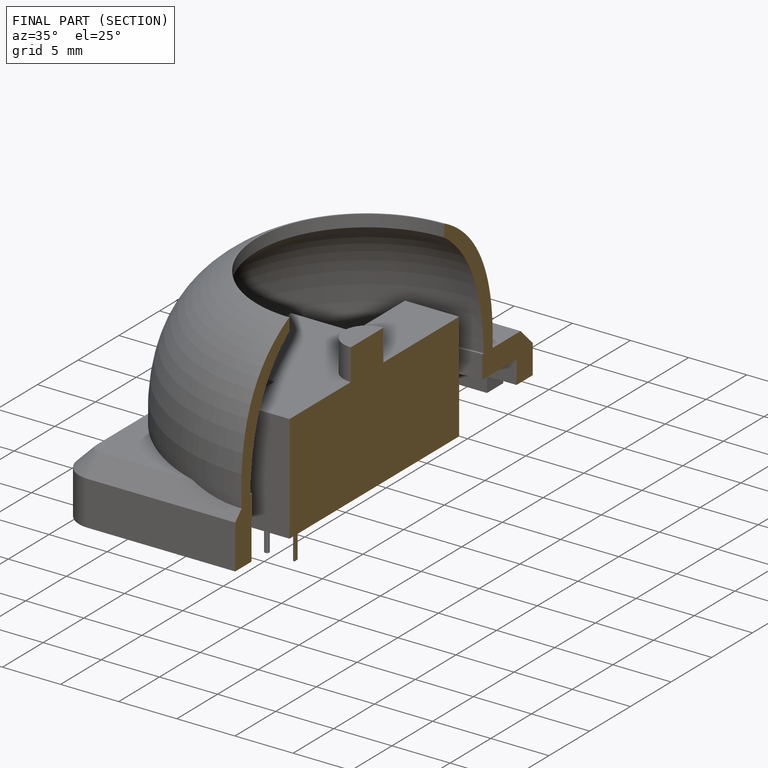
[diagram: finished part — half-section view (interior)]
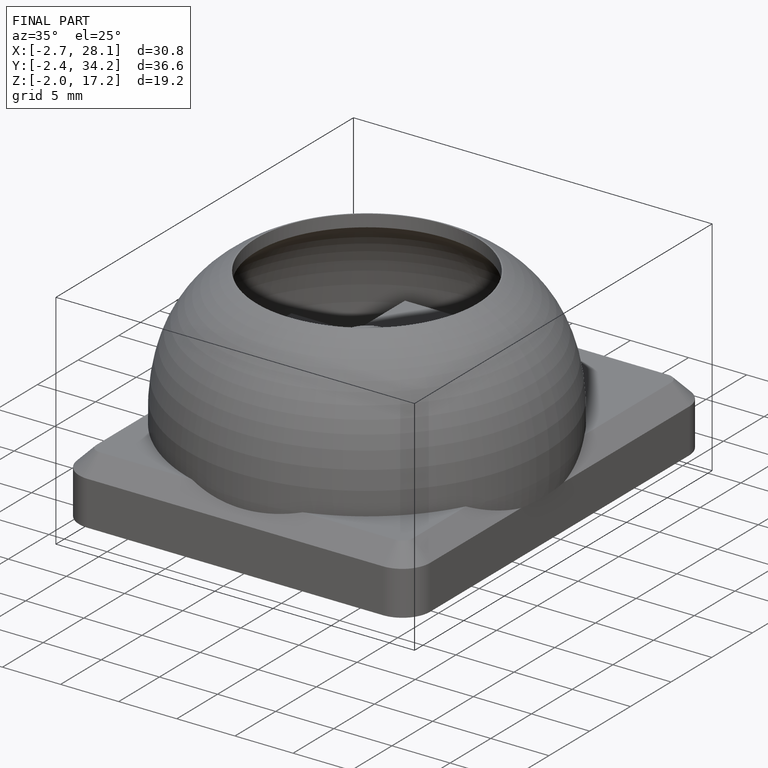
[diagram: finished part — iso view with bounding-box wireframe]
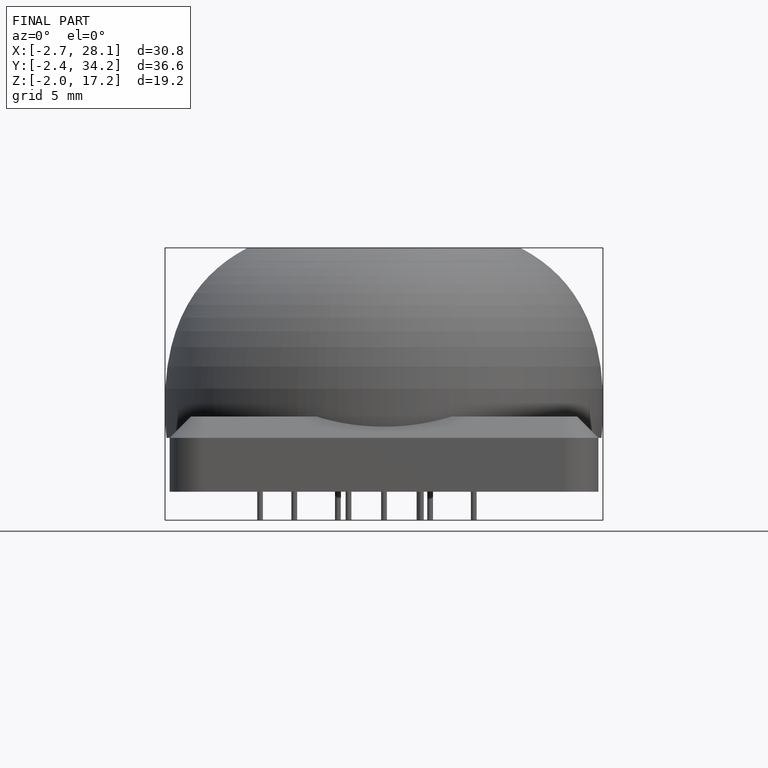
[diagram: finished part — front view with bounding-box wireframe]
